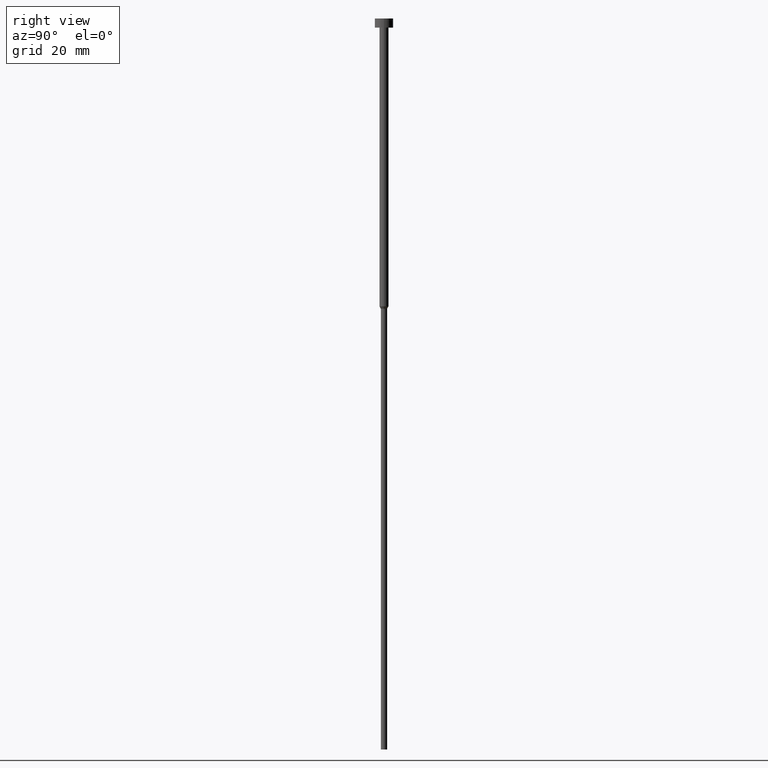
[diagram: clean part render]
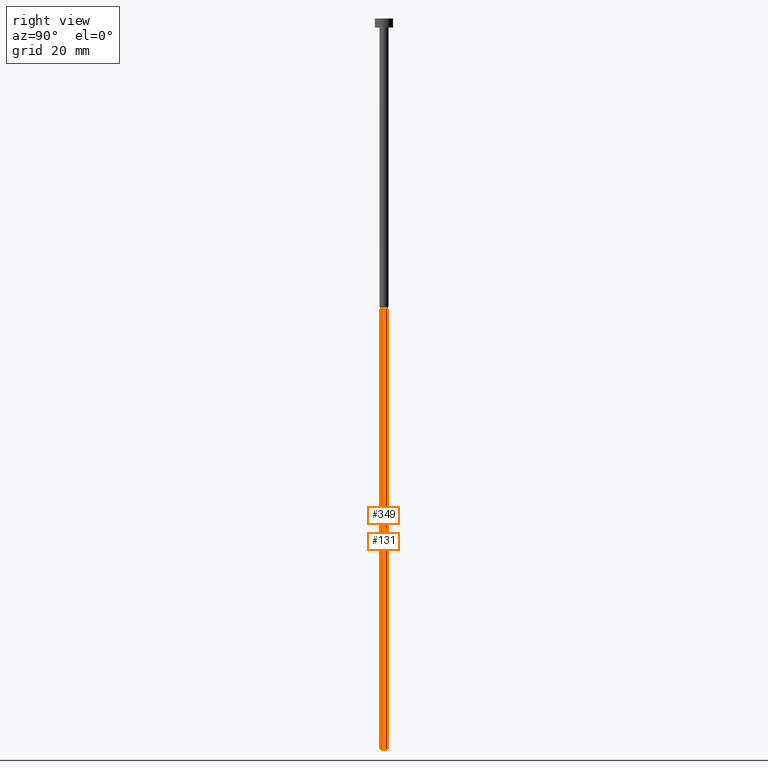
[diagram: same view with one multi-face feature highlighted, each face labeled with its STEP entity id]
A machine part, right view. The highlighted faces form ONE feature: a constant-radius fillet chain: 2 tangent blend faces with common blend radius 0.7 mm. The faces share edges in the B-rep.
Their STEP definitions:
[1] entity #349 (Cylinder):
#2 = DIRECTION ( 'NONE',  ( 1.000000000000000000, 0.000000000000000000, 0.000000000000000000 ) ) ;
#19 = VERTEX_POINT ( 'NONE', #104 ) ;
#25 = CARTESIAN_POINT ( 'NONE',  ( 0.000000000000000000, 0.000000000000000000, -160.0000000000000000 ) ) ;
#28 = CIRCLE ( 'NONE', #272, 0.6999999999999998446 ) ;
#33 = VECTOR ( 'NONE', #61, 1000.000000000000000 ) ;
#55 = DIRECTION ( 'NONE',  ( -0.000000000000000000, -0.000000000000000000, 1.000000000000000000 ) ) ;
#61 = DIRECTION ( 'NONE',  ( -0.000000000000000000, -0.000000000000000000, 1.000000000000000000 ) ) ;
#63 = CARTESIAN_POINT ( 'NONE',  ( -0.6999999999999998446, 8.572527594031470725E-17, -160.0000000000000000 ) ) ;
#73 = ORIENTED_EDGE ( 'NONE', *, *, #200, .F. ) ;
#88 = CARTESIAN_POINT ( 'NONE',  ( -0.6999999999999998446, 8.572527594031470725E-17, 0.000000000000000000 ) ) ;
#98 = VERTEX_POINT ( 'NONE', #304 ) ;
#104 = CARTESIAN_POINT ( 'NONE',  ( 0.6999999999999998446, 0.000000000000000000, -160.0000000000000000 ) ) ;
#110 = CARTESIAN_POINT ( 'NONE',  ( 0.6999999999999998446, 0.000000000000000000, 0.000000000000000000 ) ) ;
#120 = DIRECTION ( 'NONE',  ( -0.000000000000000000, -0.000000000000000000, 1.000000000000000000 ) ) ;
#125 = VERTEX_POINT ( 'NONE', #273 ) ;
#137 = DIRECTION ( 'NONE',  ( -0.000000000000000000, -0.000000000000000000, 1.000000000000000000 ) ) ;
#147 = CARTESIAN_POINT ( 'NONE',  ( 0.000000000000000000, 0.000000000000000000, 0.000000000000000000 ) ) ;
#159 = ORIENTED_EDGE ( 'NONE', *, *, #168, .T. ) ;
#166 = EDGE_LOOP ( 'NONE', ( #240, #159, #211, #73 ) ) ;
#168 = EDGE_CURVE ( 'NONE', #230, #19, #260, .T. ) ;
#173 = FACE_OUTER_BOUND ( 'NONE', #166, .T. ) ;
#183 = AXIS2_PLACEMENT_3D ( 'NONE', #25, #137, #2 ) ;
#189 = AXIS2_PLACEMENT_3D ( 'NONE', #147, #120, #337 ) ;
#194 = EDGE_CURVE ( 'NONE', #19, #125, #250, .T. ) ;
#200 = EDGE_CURVE ( 'NONE', #98, #125, #28, .T. ) ;
#211 = ORIENTED_EDGE ( 'NONE', *, *, #194, .T. ) ;
#225 = DIRECTION ( 'NONE',  ( 1.000000000000000000, 0.000000000000000000, 0.000000000000000000 ) ) ;
#230 = VERTEX_POINT ( 'NONE', #63 ) ;
#240 = ORIENTED_EDGE ( 'NONE', *, *, #259, .F. ) ;
#250 = LINE ( 'NONE', #110, #325 ) ;
#255 = LINE ( 'NONE', #88, #33 ) ;
#259 = EDGE_CURVE ( 'NONE', #230, #98, #255, .T. ) ;
#260 = CIRCLE ( 'NONE', #183, 0.6999999999999998446 ) ;
#272 = AXIS2_PLACEMENT_3D ( 'NONE', #277, #299, #225 ) ;
#273 = CARTESIAN_POINT ( 'NONE',  ( 0.6999999999999998446, 0.000000000000000000, -63.51961524227066036 ) ) ;
#277 = CARTESIAN_POINT ( 'NONE',  ( 0.000000000000000000, 0.000000000000000000, -63.51961524227066036 ) ) ;
#281 = CYLINDRICAL_SURFACE ( 'NONE', #189, 0.6999999999999998446 ) ;
#299 = DIRECTION ( 'NONE',  ( -0.000000000000000000, -0.000000000000000000, 1.000000000000000000 ) ) ;
#304 = CARTESIAN_POINT ( 'NONE',  ( -0.6999999999999998446, 8.572527594031470725E-17, -63.51961524227066036 ) ) ;
#325 = VECTOR ( 'NONE', #55, 1000.000000000000000 ) ;
#337 = DIRECTION ( 'NONE',  ( 1.000000000000000000, 0.000000000000000000, 0.000000000000000000 ) ) ;
#349 = ADVANCED_FACE ( 'NONE', ( #173 ), #281, .T. ) ;
[2] entity #131 (Cylinder):
#3 = DIRECTION ( 'NONE',  ( 1.000000000000000000, 0.000000000000000000, 0.000000000000000000 ) ) ;
#19 = VERTEX_POINT ( 'NONE', #104 ) ;
#33 = VECTOR ( 'NONE', #61, 1000.000000000000000 ) ;
#35 = CARTESIAN_POINT ( 'NONE',  ( 0.000000000000000000, 0.000000000000000000, -160.0000000000000000 ) ) ;
#52 = DIRECTION ( 'NONE',  ( 1.000000000000000000, 0.000000000000000000, 0.000000000000000000 ) ) ;
#55 = DIRECTION ( 'NONE',  ( -0.000000000000000000, -0.000000000000000000, 1.000000000000000000 ) ) ;
#61 = DIRECTION ( 'NONE',  ( -0.000000000000000000, -0.000000000000000000, 1.000000000000000000 ) ) ;
#63 = CARTESIAN_POINT ( 'NONE',  ( -0.6999999999999998446, 8.572527594031470725E-17, -160.0000000000000000 ) ) ;
#88 = CARTESIAN_POINT ( 'NONE',  ( -0.6999999999999998446, 8.572527594031470725E-17, 0.000000000000000000 ) ) ;
#98 = VERTEX_POINT ( 'NONE', #304 ) ;
#104 = CARTESIAN_POINT ( 'NONE',  ( 0.6999999999999998446, 0.000000000000000000, -160.0000000000000000 ) ) ;
#105 = EDGE_CURVE ( 'NONE', #125, #98, #288, .T. ) ;
#109 = DIRECTION ( 'NONE',  ( -0.000000000000000000, -0.000000000000000000, 1.000000000000000000 ) ) ;
#110 = CARTESIAN_POINT ( 'NONE',  ( 0.6999999999999998446, 0.000000000000000000, 0.000000000000000000 ) ) ;
#113 = AXIS2_PLACEMENT_3D ( 'NONE', #353, #109, #3 ) ;
#116 = DIRECTION ( 'NONE',  ( -0.000000000000000000, -0.000000000000000000, 1.000000000000000000 ) ) ;
#125 = VERTEX_POINT ( 'NONE', #273 ) ;
#131 = ADVANCED_FACE ( 'NONE', ( #246 ), #164, .T. ) ;
#132 = DIRECTION ( 'NONE',  ( -0.000000000000000000, -0.000000000000000000, 1.000000000000000000 ) ) ;
#150 = ORIENTED_EDGE ( 'NONE', *, *, #259, .T. ) ;
#164 = CYLINDRICAL_SURFACE ( 'NONE', #113, 0.6999999999999998446 ) ;
#174 = CIRCLE ( 'NONE', #227, 0.6999999999999998446 ) ;
#194 = EDGE_CURVE ( 'NONE', #19, #125, #250, .T. ) ;
#227 = AXIS2_PLACEMENT_3D ( 'NONE', #35, #116, #280 ) ;
#230 = VERTEX_POINT ( 'NONE', #63 ) ;
#235 = ORIENTED_EDGE ( 'NONE', *, *, #105, .F. ) ;
#246 = FACE_OUTER_BOUND ( 'NONE', #327, .T. ) ;
#249 = CARTESIAN_POINT ( 'NONE',  ( 0.000000000000000000, 0.000000000000000000, -63.51961524227066036 ) ) ;
#250 = LINE ( 'NONE', #110, #325 ) ;
#255 = LINE ( 'NONE', #88, #33 ) ;
#259 = EDGE_CURVE ( 'NONE', #230, #98, #255, .T. ) ;
#273 = CARTESIAN_POINT ( 'NONE',  ( 0.6999999999999998446, 0.000000000000000000, -63.51961524227066036 ) ) ;
#276 = ORIENTED_EDGE ( 'NONE', *, *, #324, .T. ) ;
#280 = DIRECTION ( 'NONE',  ( 1.000000000000000000, 0.000000000000000000, 0.000000000000000000 ) ) ;
#288 = CIRCLE ( 'NONE', #333, 0.6999999999999998446 ) ;
#304 = CARTESIAN_POINT ( 'NONE',  ( -0.6999999999999998446, 8.572527594031470725E-17, -63.51961524227066036 ) ) ;
#324 = EDGE_CURVE ( 'NONE', #19, #230, #174, .T. ) ;
#325 = VECTOR ( 'NONE', #55, 1000.000000000000000 ) ;
#327 = EDGE_LOOP ( 'NONE', ( #276, #150, #235, #348 ) ) ;
#333 = AXIS2_PLACEMENT_3D ( 'NONE', #249, #132, #52 ) ;
#348 = ORIENTED_EDGE ( 'NONE', *, *, #194, .F. ) ;
#353 = CARTESIAN_POINT ( 'NONE',  ( 0.000000000000000000, 0.000000000000000000, 0.000000000000000000 ) ) ;